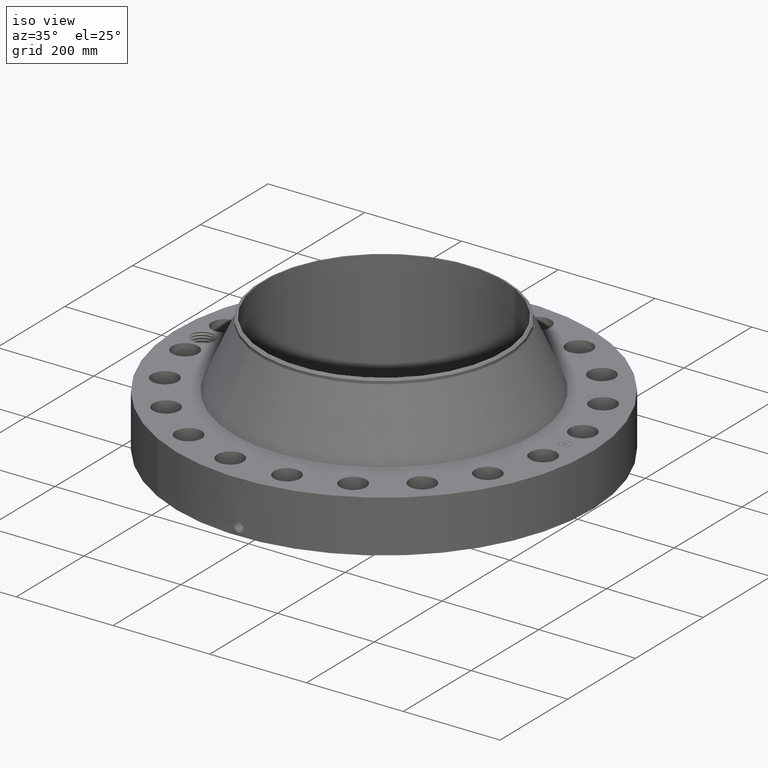
[diagram: clean part render]
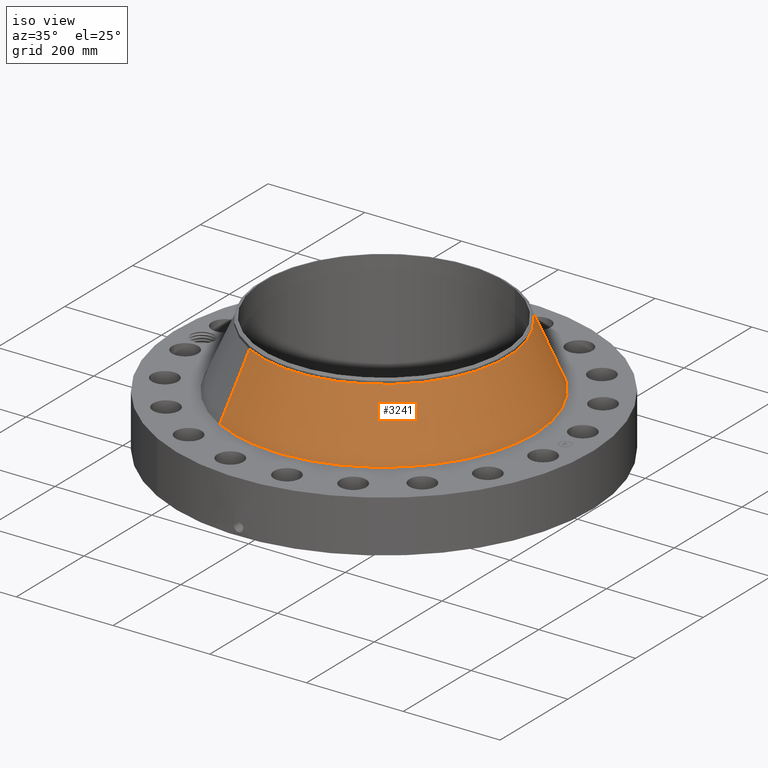
[diagram: same view with one face highlighted and labeled with its STEP entity id]
A machine part, iso view. The second image highlights one B-rep face of the part: STEP entity #3241.
In plain terms, the highlighted conical surface has half-angle 23.672 deg.
Its self-contained STEP definition (entity closure, byte-faithful):
#2538=AXIS2_PLACEMENT_3D('Circle Axis2P3D',#2536,#2537,$) ;
#3214=AXIS2_PLACEMENT_3D('Cone Axis2P3D',#3211,#3212,#3213) ;
#3225=AXIS2_PLACEMENT_3D('Circle Axis2P3D',#3223,#3224,$) ;
#2533=CARTESIAN_POINT('Vertex',(5.85786806298,10.7227555647,4.57181926733)) ;
#2536=CARTESIAN_POINT('Axis2P3D Location',(0.,0.,4.57181926733)) ;
#2540=CARTESIAN_POINT('Vertex',(-5.85786806298,-10.7227555647,4.57181926733)) ;
#3211=CARTESIAN_POINT('Axis2P3D Location',(0.,0.,9.63236722848)) ;
#3216=CARTESIAN_POINT('Line Origine',(5.32606172452,9.74929059182,7.1020932479)) ;
#3220=CARTESIAN_POINT('Vertex',(4.79425538606,8.77582561894,9.63236722848)) ;
#3223=CARTESIAN_POINT('Axis2P3D Location',(0.,0.,9.63236722848)) ;
#3227=CARTESIAN_POINT('Vertex',(-4.79425538606,-8.77582561894,9.63236722848)) ;
#3230=CARTESIAN_POINT('Line Origine',(-5.32606172452,-9.74929059182,7.1020932479)) ;
#2537=DIRECTION('Axis2P3D Direction',(0.,0.,-0.0393700787402)) ;
#3212=DIRECTION('Axis2P3D Direction',(0.,0.,-0.0393700787402)) ;
#3213=DIRECTION('Axis2P3D XDirection',(-0.0188750212049,-0.0345504945626,0.)) ;
#3217=DIRECTION('Vector Direction',(0.0075784362599,0.0138722345235,-0.0360573364683)) ;
#3224=DIRECTION('Axis2P3D Direction',(0.,0.,-0.0393700787402)) ;
#3231=DIRECTION('Vector Direction',(-0.0075784362599,-0.0138722345235,-0.0360573364683)) ;
#3218=VECTOR('Line Direction',#3217,0.0393700787402) ;
#3232=VECTOR('Line Direction',#3231,0.0393700787402) ;
#3236=ORIENTED_EDGE('',*,*,#2542,.F.) ;
#3237=ORIENTED_EDGE('',*,*,#3222,.T.) ;
#3238=ORIENTED_EDGE('',*,*,#3229,.T.) ;
#3239=ORIENTED_EDGE('',*,*,#3234,.F.) ;
#3241=ADVANCED_FACE('PartBody',(#3240),#3215,.T.) ;
#2539=CIRCLE('generated circle',#2538,12.2185148502) ;
#3226=CIRCLE('generated circle',#3225,10.) ;
#3215=CONICAL_SURFACE('Cone',#3214,10.,0.413160732606) ;
#2542=EDGE_CURVE('',#2534,#2541,#2539,.T.) ;
#3222=EDGE_CURVE('',#2534,#3221,#3219,.F.) ;
#3229=EDGE_CURVE('',#3221,#3228,#3226,.T.) ;
#3234=EDGE_CURVE('',#2541,#3228,#3233,.F.) ;
#3235=EDGE_LOOP('',(#3236,#3237,#3238,#3239)) ;
#3240=FACE_OUTER_BOUND('',#3235,.T.) ;
#3219=LINE('Line',#3216,#3218) ;
#3233=LINE('Line',#3230,#3232) ;
#2534=VERTEX_POINT('',#2533) ;
#2541=VERTEX_POINT('',#2540) ;
#3221=VERTEX_POINT('',#3220) ;
#3228=VERTEX_POINT('',#3227) ;